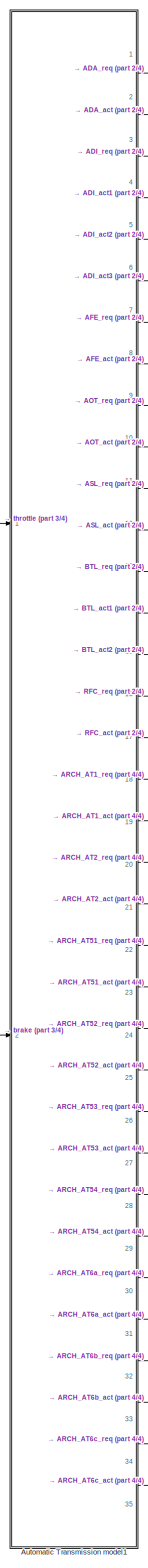
[diagram: root canvas - part 1/4, left side, full height]
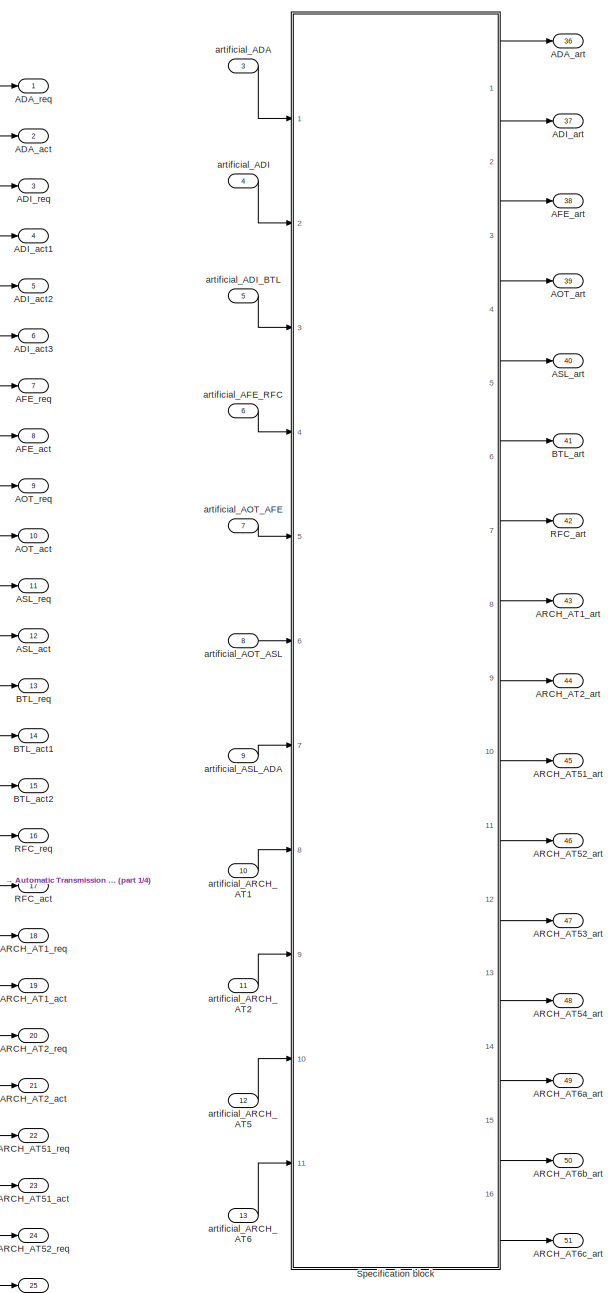
[diagram: root canvas - part 2/4, middle right region]
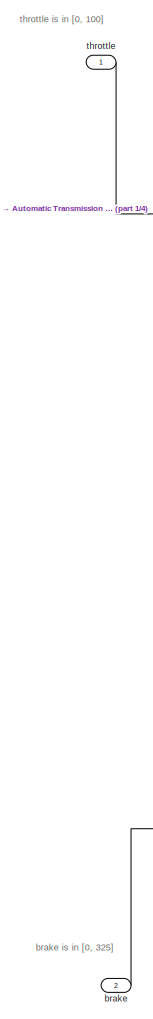
[diagram: root canvas - part 3/4, middle left region]
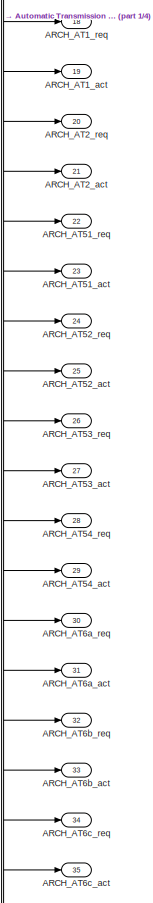
[diagram: root canvas - part 4/4, bottom center region]
MODEL slx_3574330b94aa
KIND model
CONFIG AbsTol = auto
CONFIG EnableMultiTasking = off
CONFIG FixedStep = fixedStepSize
CONFIG MaxStep = auto
CONFIG MinStep = auto
CONFIG RelTol = 1e-3
CONFIG SampleTimeConstraint = Unconstrained
CONFIG Solver = FixedStepAuto
CONFIG SolverName = FixedStepAuto
CONFIG StartTime = 0.0
CONFIG StopTime = 10.0
BLOCK [Outport] ADA_act
  IconDisplay = Port number
  Port = 2
  VectorParamsAs1DForOutWhenUnconnected = off
BLOCK [Outport] ADA_art
  IconDisplay = Port number
  Port = 36
  VectorParamsAs1DForOutWhenUnconnected = off
BLOCK [Outport] ADA_req
  IconDisplay = Port number
  VectorParamsAs1DForOutWhenUnconnected = off
BLOCK [Outport] ADI_act1
  IconDisplay = Port number
  Port = 4
  VectorParamsAs1DForOutWhenUnconnected = off
BLOCK [Outport] ADI_act2
  IconDisplay = Port number
  Port = 5
  VectorParamsAs1DForOutWhenUnconnected = off
BLOCK [Outport] ADI_act3
  IconDisplay = Port number
  Port = 6
  VectorParamsAs1DForOutWhenUnconnected = off
BLOCK [Outport] ADI_art
  IconDisplay = Port number
  Port = 37
  VectorParamsAs1DForOutWhenUnconnected = off
BLOCK [Outport] ADI_req
  IconDisplay = Port number
  Port = 3
  VectorParamsAs1DForOutWhenUnconnected = off
BLOCK [Outport] AFE_act
  IconDisplay = Port number
  Port = 8
  VectorParamsAs1DForOutWhenUnconnected = off
BLOCK [Outport] AFE_art
  IconDisplay = Port number
  Port = 38
  VectorParamsAs1DForOutWhenUnconnected = off
BLOCK [Outport] AFE_req
  IconDisplay = Port number
  Port = 7
  VectorParamsAs1DForOutWhenUnconnected = off
BLOCK [Outport] AOT_act
  IconDisplay = Port number
  Port = 10
  VectorParamsAs1DForOutWhenUnconnected = off
BLOCK [Outport] AOT_art
  IconDisplay = Port number
  Port = 39
  VectorParamsAs1DForOutWhenUnconnected = off
BLOCK [Outport] AOT_req
  IconDisplay = Port number
  Port = 9
  VectorParamsAs1DForOutWhenUnconnected = off
BLOCK [Outport] ARCH_AT1_act
  IconDisplay = Port number
  Port = 19
  VectorParamsAs1DForOutWhenUnconnected = off
BLOCK [Outport] ARCH_AT1_art
  IconDisplay = Port number
  Port = 43
  VectorParamsAs1DForOutWhenUnconnected = off
BLOCK [Outport] ARCH_AT1_req
  IconDisplay = Port number
  Port = 18
  VectorParamsAs1DForOutWhenUnconnected = off
BLOCK [Outport] ARCH_AT2_act
  IconDisplay = Port number
  Port = 21
  VectorParamsAs1DForOutWhenUnconnected = off
BLOCK [Outport] ARCH_AT2_art
  IconDisplay = Port number
  Port = 44
  VectorParamsAs1DForOutWhenUnconnected = off
BLOCK [Outport] ARCH_AT2_req
  IconDisplay = Port number
  Port = 20
  VectorParamsAs1DForOutWhenUnconnected = off
BLOCK [Outport] ARCH_AT51_act
  IconDisplay = Port number
  Port = 23
  VectorParamsAs1DForOutWhenUnconnected = off
BLOCK [Outport] ARCH_AT51_art
  IconDisplay = Port number
  Port = 45
  VectorParamsAs1DForOutWhenUnconnected = off
BLOCK [Outport] ARCH_AT51_req
  IconDisplay = Port number
  Port = 22
  VectorParamsAs1DForOutWhenUnconnected = off
BLOCK [Outport] ARCH_AT52_act
  IconDisplay = Port number
  Port = 25
  VectorParamsAs1DForOutWhenUnconnected = off
BLOCK [Outport] ARCH_AT52_art
  IconDisplay = Port number
  Port = 46
  VectorParamsAs1DForOutWhenUnconnected = off
BLOCK [Outport] ARCH_AT52_req
  IconDisplay = Port number
  Port = 24
  VectorParamsAs1DForOutWhenUnconnected = off
BLOCK [Outport] ARCH_AT53_act
  IconDisplay = Port number
  Port = 27
  VectorParamsAs1DForOutWhenUnconnected = off
BLOCK [Outport] ARCH_AT53_art
  IconDisplay = Port number
  Port = 47
  VectorParamsAs1DForOutWhenUnconnected = off
BLOCK [Outport] ARCH_AT53_req
  IconDisplay = Port number
  Port = 26
  VectorParamsAs1DForOutWhenUnconnected = off
BLOCK [Outport] ARCH_AT54_act
  IconDisplay = Port number
  Port = 29
  VectorParamsAs1DForOutWhenUnconnected = off
BLOCK [Outport] ARCH_AT54_art
  IconDisplay = Port number
  Port = 48
  VectorParamsAs1DForOutWhenUnconnected = off
BLOCK [Outport] ARCH_AT54_req
  IconDisplay = Port number
  Port = 28
  VectorParamsAs1DForOutWhenUnconnected = off
BLOCK [Outport] ARCH_AT6a_act
  IconDisplay = Port number
  Port = 31
  VectorParamsAs1DForOutWhenUnconnected = off
BLOCK [Outport] ARCH_AT6a_art
  IconDisplay = Port number
  Port = 49
  VectorParamsAs1DForOutWhenUnconnected = off
BLOCK [Outport] ARCH_AT6a_req
  IconDisplay = Port number
  Port = 30
  VectorParamsAs1DForOutWhenUnconnected = off
BLOCK [Outport] ARCH_AT6b_act
  IconDisplay = Port number
  Port = 33
  VectorParamsAs1DForOutWhenUnconnected = off
BLOCK [Outport] ARCH_AT6b_art
  IconDisplay = Port number
  Port = 50
  VectorParamsAs1DForOutWhenUnconnected = off
BLOCK [Outport] ARCH_AT6b_req
  IconDisplay = Port number
  Port = 32
  VectorParamsAs1DForOutWhenUnconnected = off
BLOCK [Outport] ARCH_AT6c_act
  IconDisplay = Port number
  Port = 35
  VectorParamsAs1DForOutWhenUnconnected = off
BLOCK [Outport] ARCH_AT6c_art
  IconDisplay = Port number
  Port = 51
  VectorParamsAs1DForOutWhenUnconnected = off
BLOCK [Outport] ARCH_AT6c_req
  IconDisplay = Port number
  Port = 34
  VectorParamsAs1DForOutWhenUnconnected = off
BLOCK [Outport] ASL_act
  IconDisplay = Port number
  Port = 12
  VectorParamsAs1DForOutWhenUnconnected = off
BLOCK [Outport] ASL_art
  IconDisplay = Port number
  Port = 40
  VectorParamsAs1DForOutWhenUnconnected = off
BLOCK [Outport] ASL_req
  IconDisplay = Port number
  Port = 11
  VectorParamsAs1DForOutWhenUnconnected = off
BLOCK [ModelReference] Automatic Transmission model1
  ModelNameDialog = AT_and_specifications.slx
  ModelReferenceVersion = 1.30
  Ports = [2, 35]
BLOCK [Outport] BTL_act1
  IconDisplay = Port number
  Port = 14
  VectorParamsAs1DForOutWhenUnconnected = off
BLOCK [Outport] BTL_act2
  IconDisplay = Port number
  Port = 15
  VectorParamsAs1DForOutWhenUnconnected = off
BLOCK [Outport] BTL_art
  IconDisplay = Port number
  Port = 41
  VectorParamsAs1DForOutWhenUnconnected = off
BLOCK [Outport] BTL_req
  IconDisplay = Port number
  Port = 13
  VectorParamsAs1DForOutWhenUnconnected = off
BLOCK [Outport] RFC_act
  IconDisplay = Port number
  Port = 17
  VectorParamsAs1DForOutWhenUnconnected = off
BLOCK [Outport] RFC_art
  IconDisplay = Port number
  Port = 42
  VectorParamsAs1DForOutWhenUnconnected = off
BLOCK [Outport] RFC_req
  IconDisplay = Port number
  Port = 16
  VectorParamsAs1DForOutWhenUnconnected = off
BLOCK [ModelReference] Specification block
  ModelNameDialog = specifications_artificial
  ModelReferenceVersion = 1.52
  Ports = [11, 16]
BLOCK [Inport] artificial_ADA
  IconDisplay = Port number
  Port = 3
BLOCK [Inport] artificial_ADI
  IconDisplay = Port number
  Port = 4
BLOCK [Inport] artificial_ADI_BTL
  IconDisplay = Port number
  Port = 5
BLOCK [Inport] artificial_AFE_RFC
  IconDisplay = Port number
  Port = 6
BLOCK [Inport] artificial_AOT_AFE
  IconDisplay = Port number
  Port = 7
BLOCK [Inport] artificial_AOT_ASL
  IconDisplay = Port number
  Port = 8
BLOCK [Inport] artificial_ARCH_AT1
  IconDisplay = Port number
  Port = 10
BLOCK [Inport] artificial_ARCH_AT2
  IconDisplay = Port number
  Port = 11
BLOCK [Inport] artificial_ARCH_AT5
  IconDisplay = Port number
  Port = 12
BLOCK [Inport] artificial_ARCH_AT6
  IconDisplay = Port number
  Port = 13
BLOCK [Inport] artificial_ASL_ADA
  IconDisplay = Port number
  Port = 9
BLOCK [Inport] brake
  IconDisplay = Port number
  Port = 2
BLOCK [Inport] throttle
  IconDisplay = Port number
ANNOTATION (root): brake is in [0, 325]
ANNOTATION (root): throttle is in [0, 100]
LINE Automatic Transmission model1:1 -> ADA_req:1
LINE Automatic Transmission model1:10 -> AOT_act:1
LINE Automatic Transmission model1:11 -> ASL_req:1
LINE Automatic Transmission model1:12 -> ASL_act:1
LINE Automatic Transmission model1:13 -> BTL_req:1
LINE Automatic Transmission model1:14 -> BTL_act1:1
LINE Automatic Transmission model1:15 -> BTL_act2:1
LINE Automatic Transmission model1:16 -> RFC_req:1
LINE Automatic Transmission model1:17 -> RFC_act:1
LINE Automatic Transmission model1:18 -> ARCH_AT1_req:1
LINE Automatic Transmission model1:19 -> ARCH_AT1_act:1
LINE Automatic Transmission model1:2 -> ADA_act:1
LINE Automatic Transmission model1:20 -> ARCH_AT2_req:1
LINE Automatic Transmission model1:21 -> ARCH_AT2_act:1
LINE Automatic Transmission model1:22 -> ARCH_AT51_req:1
LINE Automatic Transmission model1:23 -> ARCH_AT51_act:1
LINE Automatic Transmission model1:24 -> ARCH_AT52_req:1
LINE Automatic Transmission model1:25 -> ARCH_AT52_act:1
LINE Automatic Transmission model1:26 -> ARCH_AT53_req:1
LINE Automatic Transmission model1:27 -> ARCH_AT53_act:1
LINE Automatic Transmission model1:28 -> ARCH_AT54_req:1
LINE Automatic Transmission model1:29 -> ARCH_AT54_act:1
LINE Automatic Transmission model1:3 -> ADI_req:1
LINE Automatic Transmission model1:30 -> ARCH_AT6a_req:1
LINE Automatic Transmission model1:31 -> ARCH_AT6a_act:1
LINE Automatic Transmission model1:32 -> ARCH_AT6b_req:1
LINE Automatic Transmission model1:33 -> ARCH_AT6b_act:1
LINE Automatic Transmission model1:34 -> ARCH_AT6c_req:1
LINE Automatic Transmission model1:35 -> ARCH_AT6c_act:1
LINE Automatic Transmission model1:4 -> ADI_act1:1
LINE Automatic Transmission model1:5 -> ADI_act2:1
LINE Automatic Transmission model1:6 -> ADI_act3:1
LINE Automatic Transmission model1:7 -> AFE_req:1
LINE Automatic Transmission model1:8 -> AFE_act:1
LINE Automatic Transmission model1:9 -> AOT_req:1
LINE Specification block:1 -> ADA_art:1
LINE Specification block:10 -> ARCH_AT51_art:1
LINE Specification block:11 -> ARCH_AT52_art:1
LINE Specification block:12 -> ARCH_AT53_art:1
LINE Specification block:13 -> ARCH_AT54_art:1
LINE Specification block:14 -> ARCH_AT6a_art:1
LINE Specification block:15 -> ARCH_AT6b_art:1
LINE Specification block:16 -> ARCH_AT6c_art:1
LINE Specification block:2 -> ADI_art:1
LINE Specification block:3 -> AFE_art:1
LINE Specification block:4 -> AOT_art:1
LINE Specification block:5 -> ASL_art:1
LINE Specification block:6 -> BTL_art:1
LINE Specification block:7 -> RFC_art:1
LINE Specification block:8 -> ARCH_AT1_art:1
LINE Specification block:9 -> ARCH_AT2_art:1
LINE artificial_ADA:1 -> Specification block:1
LINE artificial_ADI:1 -> Specification block:2
LINE artificial_ADI_BTL:1 -> Specification block:3
LINE artificial_AFE_RFC:1 -> Specification block:4
LINE artificial_AOT_AFE:1 -> Specification block:5
LINE artificial_AOT_ASL:1 -> Specification block:6
LINE artificial_ARCH_AT1:1 -> Specification block:8
LINE artificial_ARCH_AT2:1 -> Specification block:9
LINE artificial_ARCH_AT5:1 -> Specification block:10
LINE artificial_ARCH_AT6:1 -> Specification block:11
LINE artificial_ASL_ADA:1 -> Specification block:7
LINE brake:1 -> Automatic Transmission model1:2
LINE throttle:1 -> Automatic Transmission model1:1
